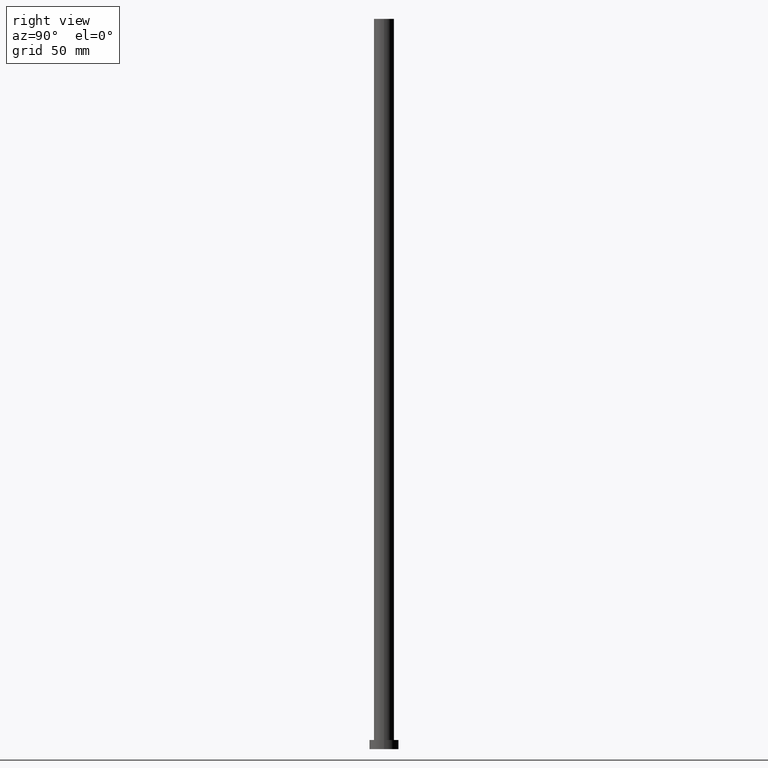
[diagram: clean part render]
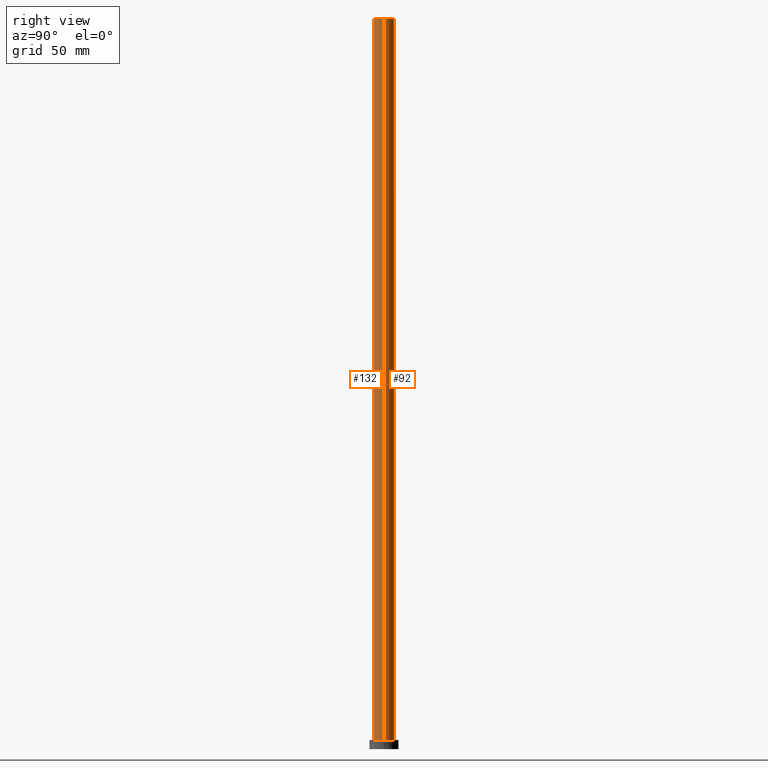
[diagram: same view with one multi-face feature highlighted, each face labeled with its STEP entity id]
A machine part, right view. The highlighted faces form ONE feature: a constant-radius fillet chain: 2 tangent blend faces with common blend radius 5.5 mm. The faces share edges in the B-rep.
Their STEP definitions:
[1] entity #132 (Cylinder):
#3 = CARTESIAN_POINT ( 'NONE',  ( 0.000000000000000000, 0.000000000000000000, 400.0000000000000000 ) ) ;
#15 = CYLINDRICAL_SURFACE ( 'NONE', #54, 5.500000000000000000 ) ;
#20 = EDGE_CURVE ( 'NONE', #120, #236, #133, .T. ) ;
#22 = DIRECTION ( 'NONE',  ( 1.000000000000000000, 0.000000000000000000, 0.000000000000000000 ) ) ;
#23 = AXIS2_PLACEMENT_3D ( 'NONE', #3, #83, #27 ) ;
#27 = DIRECTION ( 'NONE',  ( 1.000000000000000000, 0.000000000000000000, 0.000000000000000000 ) ) ;
#51 = DIRECTION ( 'NONE',  ( -0.000000000000000000, -0.000000000000000000, -1.000000000000000000 ) ) ;
#54 = AXIS2_PLACEMENT_3D ( 'NONE', #153, #74, #209 ) ;
#68 = DIRECTION ( 'NONE',  ( 0.000000000000000000, 0.000000000000000000, 1.000000000000000000 ) ) ;
#74 = DIRECTION ( 'NONE',  ( -0.000000000000000000, -0.000000000000000000, -1.000000000000000000 ) ) ;
#77 = CARTESIAN_POINT ( 'NONE',  ( -5.500000000000000000, 0.000000000000000000, 400.0000000000000000 ) ) ;
#83 = DIRECTION ( 'NONE',  ( 0.000000000000000000, 0.000000000000000000, 1.000000000000000000 ) ) ;
#84 = ORIENTED_EDGE ( 'NONE', *, *, #112, .T. ) ;
#85 = EDGE_CURVE ( 'NONE', #214, #143, #156, .T. ) ;
#89 = DIRECTION ( 'NONE',  ( -0.000000000000000000, -0.000000000000000000, -1.000000000000000000 ) ) ;
#100 = EDGE_CURVE ( 'NONE', #143, #236, #148, .T. ) ;
#103 = ORIENTED_EDGE ( 'NONE', *, *, #85, .F. ) ;
#111 = EDGE_LOOP ( 'NONE', ( #216, #103, #84, #167 ) ) ;
#112 = EDGE_CURVE ( 'NONE', #214, #120, #252, .T. ) ;
#120 = VERTEX_POINT ( 'NONE', #231 ) ;
#123 = CARTESIAN_POINT ( 'NONE',  ( 0.000000000000000000, 0.000000000000000000, 5.000000000000000000 ) ) ;
#132 = ADVANCED_FACE ( 'NONE', ( #253 ), #15, .T. ) ;
#133 = CIRCLE ( 'NONE', #250, 5.500000000000000000 ) ;
#139 = VECTOR ( 'NONE', #89, 1000.000000000000000 ) ;
#142 = VECTOR ( 'NONE', #51, 1000.000000000000000 ) ;
#143 = VERTEX_POINT ( 'NONE', #186 ) ;
#148 = LINE ( 'NONE', #244, #139 ) ;
#149 = CARTESIAN_POINT ( 'NONE',  ( -5.500000000000000000, 0.000000000000000000, 400.0000000000000000 ) ) ;
#153 = CARTESIAN_POINT ( 'NONE',  ( 0.000000000000000000, 0.000000000000000000, 400.0000000000000000 ) ) ;
#156 = CIRCLE ( 'NONE', #23, 5.500000000000000000 ) ;
#167 = ORIENTED_EDGE ( 'NONE', *, *, #20, .T. ) ;
#186 = CARTESIAN_POINT ( 'NONE',  ( 5.500000000000000000, 6.735557395310441037E-16, 400.0000000000000000 ) ) ;
#190 = CARTESIAN_POINT ( 'NONE',  ( 5.500000000000000000, 6.735557395310441037E-16, 5.000000000000000000 ) ) ;
#209 = DIRECTION ( 'NONE',  ( -1.000000000000000000, 0.000000000000000000, 0.000000000000000000 ) ) ;
#214 = VERTEX_POINT ( 'NONE', #149 ) ;
#216 = ORIENTED_EDGE ( 'NONE', *, *, #100, .F. ) ;
#231 = CARTESIAN_POINT ( 'NONE',  ( -5.500000000000000000, 0.000000000000000000, 5.000000000000000000 ) ) ;
#236 = VERTEX_POINT ( 'NONE', #190 ) ;
#244 = CARTESIAN_POINT ( 'NONE',  ( 5.500000000000000000, 6.735557395310441037E-16, 400.0000000000000000 ) ) ;
#250 = AXIS2_PLACEMENT_3D ( 'NONE', #123, #68, #22 ) ;
#252 = LINE ( 'NONE', #77, #142 ) ;
#253 = FACE_OUTER_BOUND ( 'NONE', #111, .T. ) ;
[2] entity #92 (Cylinder):
#8 = DIRECTION ( 'NONE',  ( -1.000000000000000000, 0.000000000000000000, 0.000000000000000000 ) ) ;
#13 = AXIS2_PLACEMENT_3D ( 'NONE', #44, #185, #8 ) ;
#18 = CIRCLE ( 'NONE', #88, 5.500000000000000000 ) ;
#30 = DIRECTION ( 'NONE',  ( 1.000000000000000000, 0.000000000000000000, 0.000000000000000000 ) ) ;
#34 = AXIS2_PLACEMENT_3D ( 'NONE', #182, #105, #107 ) ;
#37 = EDGE_LOOP ( 'NONE', ( #40, #192, #42, #221 ) ) ;
#40 = ORIENTED_EDGE ( 'NONE', *, *, #104, .F. ) ;
#41 = EDGE_CURVE ( 'NONE', #236, #120, #101, .T. ) ;
#42 = ORIENTED_EDGE ( 'NONE', *, *, #41, .T. ) ;
#44 = CARTESIAN_POINT ( 'NONE',  ( 0.000000000000000000, 0.000000000000000000, 400.0000000000000000 ) ) ;
#51 = DIRECTION ( 'NONE',  ( -0.000000000000000000, -0.000000000000000000, -1.000000000000000000 ) ) ;
#77 = CARTESIAN_POINT ( 'NONE',  ( -5.500000000000000000, 0.000000000000000000, 400.0000000000000000 ) ) ;
#88 = AXIS2_PLACEMENT_3D ( 'NONE', #171, #248, #30 ) ;
#89 = DIRECTION ( 'NONE',  ( -0.000000000000000000, -0.000000000000000000, -1.000000000000000000 ) ) ;
#92 = ADVANCED_FACE ( 'NONE', ( #240 ), #218, .T. ) ;
#100 = EDGE_CURVE ( 'NONE', #143, #236, #148, .T. ) ;
#101 = CIRCLE ( 'NONE', #34, 5.500000000000000000 ) ;
#104 = EDGE_CURVE ( 'NONE', #143, #214, #18, .T. ) ;
#105 = DIRECTION ( 'NONE',  ( 0.000000000000000000, 0.000000000000000000, 1.000000000000000000 ) ) ;
#107 = DIRECTION ( 'NONE',  ( 1.000000000000000000, 0.000000000000000000, 0.000000000000000000 ) ) ;
#112 = EDGE_CURVE ( 'NONE', #214, #120, #252, .T. ) ;
#120 = VERTEX_POINT ( 'NONE', #231 ) ;
#139 = VECTOR ( 'NONE', #89, 1000.000000000000000 ) ;
#142 = VECTOR ( 'NONE', #51, 1000.000000000000000 ) ;
#143 = VERTEX_POINT ( 'NONE', #186 ) ;
#148 = LINE ( 'NONE', #244, #139 ) ;
#149 = CARTESIAN_POINT ( 'NONE',  ( -5.500000000000000000, 0.000000000000000000, 400.0000000000000000 ) ) ;
#171 = CARTESIAN_POINT ( 'NONE',  ( 0.000000000000000000, 0.000000000000000000, 400.0000000000000000 ) ) ;
#182 = CARTESIAN_POINT ( 'NONE',  ( 0.000000000000000000, 0.000000000000000000, 5.000000000000000000 ) ) ;
#185 = DIRECTION ( 'NONE',  ( -0.000000000000000000, -0.000000000000000000, -1.000000000000000000 ) ) ;
#186 = CARTESIAN_POINT ( 'NONE',  ( 5.500000000000000000, 6.735557395310441037E-16, 400.0000000000000000 ) ) ;
#190 = CARTESIAN_POINT ( 'NONE',  ( 5.500000000000000000, 6.735557395310441037E-16, 5.000000000000000000 ) ) ;
#192 = ORIENTED_EDGE ( 'NONE', *, *, #100, .T. ) ;
#214 = VERTEX_POINT ( 'NONE', #149 ) ;
#218 = CYLINDRICAL_SURFACE ( 'NONE', #13, 5.500000000000000000 ) ;
#221 = ORIENTED_EDGE ( 'NONE', *, *, #112, .F. ) ;
#231 = CARTESIAN_POINT ( 'NONE',  ( -5.500000000000000000, 0.000000000000000000, 5.000000000000000000 ) ) ;
#236 = VERTEX_POINT ( 'NONE', #190 ) ;
#240 = FACE_OUTER_BOUND ( 'NONE', #37, .T. ) ;
#244 = CARTESIAN_POINT ( 'NONE',  ( 5.500000000000000000, 6.735557395310441037E-16, 400.0000000000000000 ) ) ;
#248 = DIRECTION ( 'NONE',  ( 0.000000000000000000, 0.000000000000000000, 1.000000000000000000 ) ) ;
#252 = LINE ( 'NONE', #77, #142 ) ;